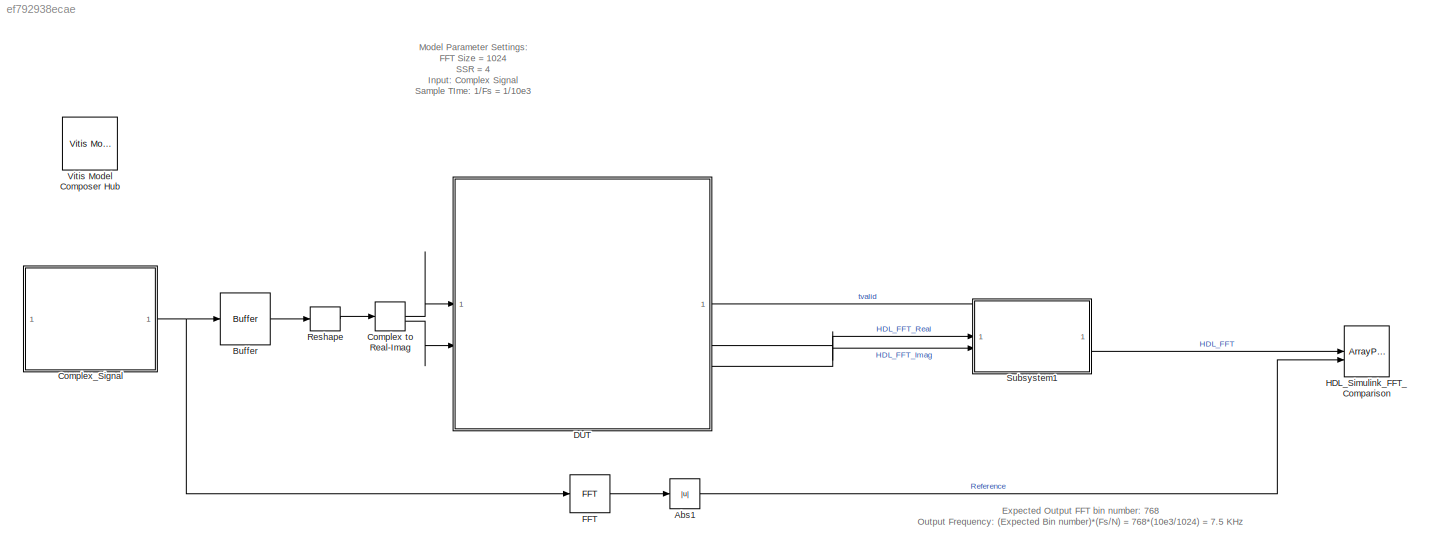
MODEL slx_ef792938ecae
KIND model
CONFIG AbsTol = auto
CONFIG EnableMultiTasking = on
CONFIG FixedStep = auto
CONFIG MaxStep = auto
CONFIG MinStep = auto
CONFIG RelTol = 1e-3
CONFIG SampleTimeConstraint = Unconstrained
CONFIG SolverName = ode45
CONFIG StartTime = 0.0
CONFIG StopTime = 2048/10e3
BLOCK [Abs] Abs1
  SaturateOnIntegerOverflow = off
BLOCK [Buffer] Buffer
  N = 4
  OutputFrames = off
BLOCK [ComplexToRealImag] Complex to Real-Imag
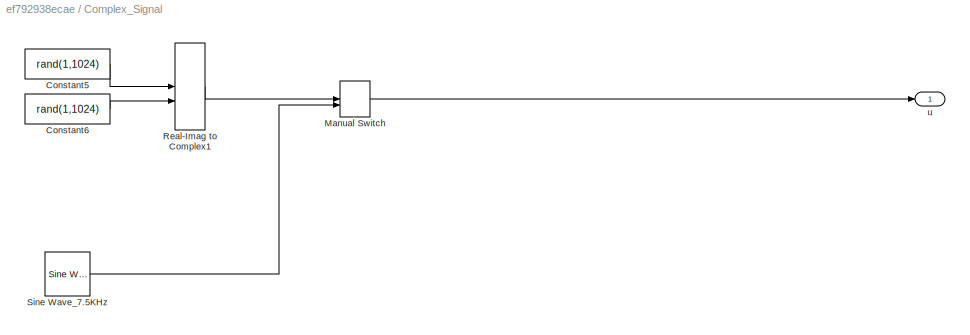
BLOCK [SubSystem] Complex_Signal
BLOCK [Constant] Complex_Signal/Constant5
  OutDataTypeStr = single
  SampleTime = -1
  Value = rand(1,1024)
BLOCK [Constant] Complex_Signal/Constant6
  OutDataTypeStr = single
  SampleTime = -1
  Value = rand(1,1024)
BLOCK [ManualSwitch] Complex_Signal/Manual Switch
  CurrentSetting = 0
BLOCK [RealImagToComplex] Complex_Signal/Real-Imag to Complex1
BLOCK [Reference] Complex_Signal/Sine Wave_7.5KHz  REF=dspsrcs4/Sine Wave
  SourceBlock = dspsrcs4/Sine Wave
  SourceType = Sine Wave
BLOCK [Outport] Complex_Signal/u
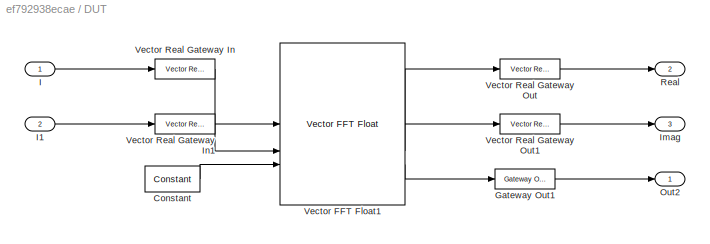
BLOCK [SubSystem] DUT
BLOCK [Reference] DUT/Constant  REF=hdlBasic/Constant
  SourceBlock = hdlBasic/Constant
  SourceType = Constant Block Block
BLOCK [Reference] DUT/Gateway Out1  REF=hdlBasic/Gateway Out
  SourceBlock = hdlBasic/Gateway Out
  SourceType = Gateway Out Block
BLOCK [Inport] DUT/I
BLOCK [Inport] DUT/I1
  Port = 2
BLOCK [Outport] DUT/Imag
  Port = 3
BLOCK [Outport] DUT/Out2
BLOCK [Outport] DUT/Real
  Port = 2
BLOCK [Reference] DUT/Vector FFT Float1  REF=hdlSSR/Vector FFT Float
  SourceBlock = hdlSSR/Vector FFT Float
  SourceType = Vector FFT Float
BLOCK [Reference] DUT/Vector Real Gateway In  REF=hdlSSR/Vector Real Gateway In
  SourceBlock = hdlSSR/Vector Real Gateway In
  SourceType = Xilinx Vector Gateway In Block
BLOCK [Reference] DUT/Vector Real Gateway In1  REF=hdlSSR/Vector Real Gateway In
  SourceBlock = hdlSSR/Vector Real Gateway In
  SourceType = Xilinx Vector Gateway In Block
BLOCK [Reference] DUT/Vector Real Gateway Out  REF=hdlSSR/Vector Real Gateway Out
  SourceBlock = hdlSSR/Vector Real Gateway Out
  SourceType = Xilinx Vector Gateway Out Block
BLOCK [Reference] DUT/Vector Real Gateway Out1  REF=hdlSSR/Vector Real Gateway Out
  SourceBlock = hdlSSR/Vector Real Gateway Out
  SourceType = Xilinx Vector Gateway Out Block
BLOCK [Reference] FFT  REF=dspxfrm3/FFT
  SourceBlock = dspxfrm3/FFT
  SourceType = FFT
BLOCK [ArrayPlot] HDL_Simulink_FFT_Comparison
  GraphicalSettings = {"Style":{"BackgroundColor":[0.12941176470588237,0.12941176470588237,0.12941176470588237],"AxesColor":[0.07058823529411765,0.07058823529411765,0.07058823529411765],"LabelsColor":[0.8509803921568627,0.8509803921568627,0.8509803921568627],"PreserveColors":false,"Visible":[true,true],"LineStyle":["-","-"],"LineColor":[[1,0.9098039215686274,0.39215686274509803],[0.14901960784313725,0.5490196078431373,...<+627ch>
  NumInputPorts = 2
  PlotType = Line
  ScopeFrameLocation = window
  ShowLegend = on
  WasSavedAsWebScope = on
  WindowPosition = [1.000000,1.000000,1920.000000,1149.000000,]
  YLimits = [-2.3479 24.476]
BLOCK [Reshape] Reshape
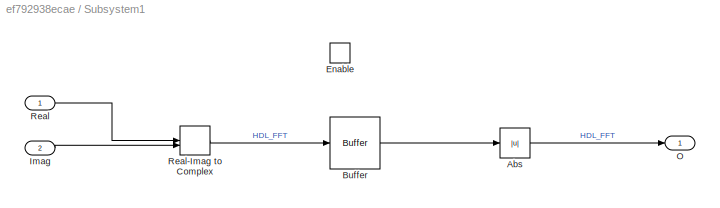
BLOCK [SubSystem] Subsystem1
BLOCK [Abs] Subsystem1/Abs
  SaturateOnIntegerOverflow = off
BLOCK [Buffer] Subsystem1/Buffer
  N = 1024
  OutputFrames = off
BLOCK [EnablePort] Subsystem1/Enable
BLOCK [Inport] Subsystem1/Imag
  Port = 2
BLOCK [Outport] Subsystem1/O
BLOCK [Inport] Subsystem1/Real
BLOCK [RealImagToComplex] Subsystem1/Real-Imag to Complex
BLOCK [Reference] Vitis Model Composer Hub  REF=vmcUtilities/Vitis Model Composer Hub
  SourceBlock = vmcUtilities/Vitis Model Composer Hub
  SourceType = VMC Hub
  Tag = genX
  UserDataPersistent = on
ANNOTATION (root): Model Parameter Settings: FFT Size = 1024 SSR = 4 Input: Complex Signal Sample TIme: 1/Fs = 1/10e3
ANNOTATION (root): Expected Output FFT bin number: 768 Output Frequency: (Expected Bin number)*(Fs/N) = 768*(10e3/1024) = 7.5 KHz
LINE Abs1:1 -> HDL_Simulink_FFT_Comparison:2
LINE Buffer:1 -> Reshape:1
LINE Complex to Real-Imag:1 -> DUT:1
LINE Complex to Real-Imag:2 -> DUT:2
LINE Complex_Signal/Constant5:1 -> Complex_Signal/Real-Imag to Complex1:1
LINE Complex_Signal/Constant6:1 -> Complex_Signal/Real-Imag to Complex1:2
LINE Complex_Signal/Manual Switch:1 -> Complex_Signal/u:1
LINE Complex_Signal/Real-Imag to Complex1:1 -> Complex_Signal/Manual Switch:1
LINE Complex_Signal/Sine Wave_7.5KHz:1 -> Complex_Signal/Manual Switch:2
NET Complex_Signal:1 -> Buffer:1, FFT:1
LINE DUT/Constant:1 -> DUT/Vector FFT Float1:3
LINE DUT/Gateway Out1:1 -> DUT/Out2:1
LINE DUT/I1:1 -> DUT/Vector Real Gateway In1:1
LINE DUT/I:1 -> DUT/Vector Real Gateway In:1
LINE DUT/Vector FFT Float1:1 -> DUT/Vector Real Gateway Out:1
LINE DUT/Vector FFT Float1:2 -> DUT/Vector Real Gateway Out1:1
LINE DUT/Vector FFT Float1:3 -> DUT/Gateway Out1:1
LINE DUT/Vector Real Gateway In1:1 -> DUT/Vector FFT Float1:2
LINE DUT/Vector Real Gateway In:1 -> DUT/Vector FFT Float1:1
LINE DUT/Vector Real Gateway Out1:1 -> DUT/Imag:1
LINE DUT/Vector Real Gateway Out:1 -> DUT/Real:1
LINE DUT:1 -> Subsystem1:enable
LINE DUT:2 -> Subsystem1:1
LINE DUT:3 -> Subsystem1:2
LINE FFT:1 -> Abs1:1
LINE Reshape:1 -> Complex to Real-Imag:1
LINE Subsystem1/Abs:1 -> Subsystem1/O:1
LINE Subsystem1/Buffer:1 -> Subsystem1/Abs:1
LINE Subsystem1/Imag:1 -> Subsystem1/Real-Imag to Complex:2
LINE Subsystem1/Real-Imag to Complex:1 -> Subsystem1/Buffer:1
LINE Subsystem1/Real:1 -> Subsystem1/Real-Imag to Complex:1
LINE Subsystem1:1 -> HDL_Simulink_FFT_Comparison:1
note: NET lines group one-source signal fan-out (src -> all destinations, sorted); 1:1 wires keep LINE
